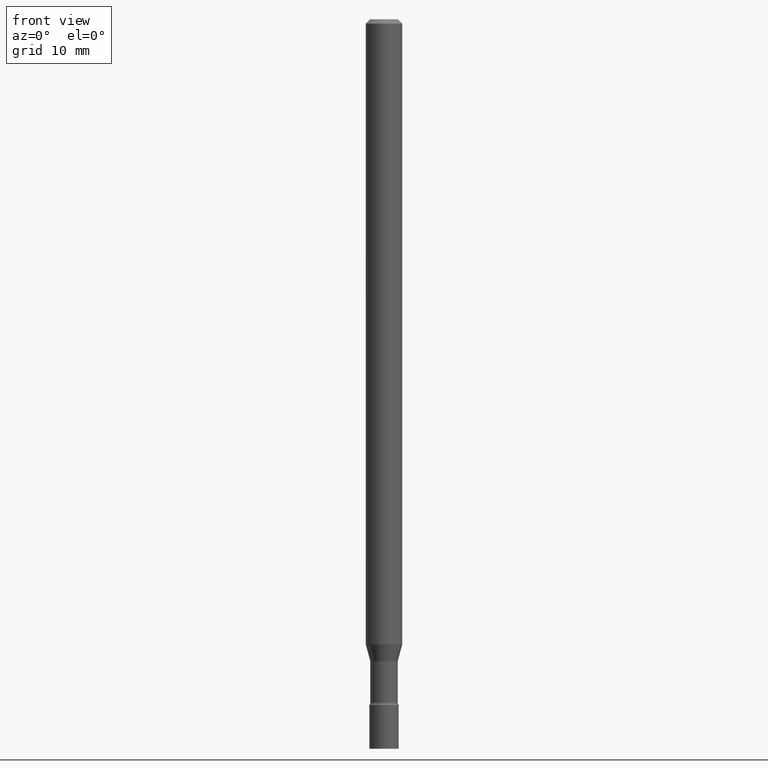
[diagram: clean part render]
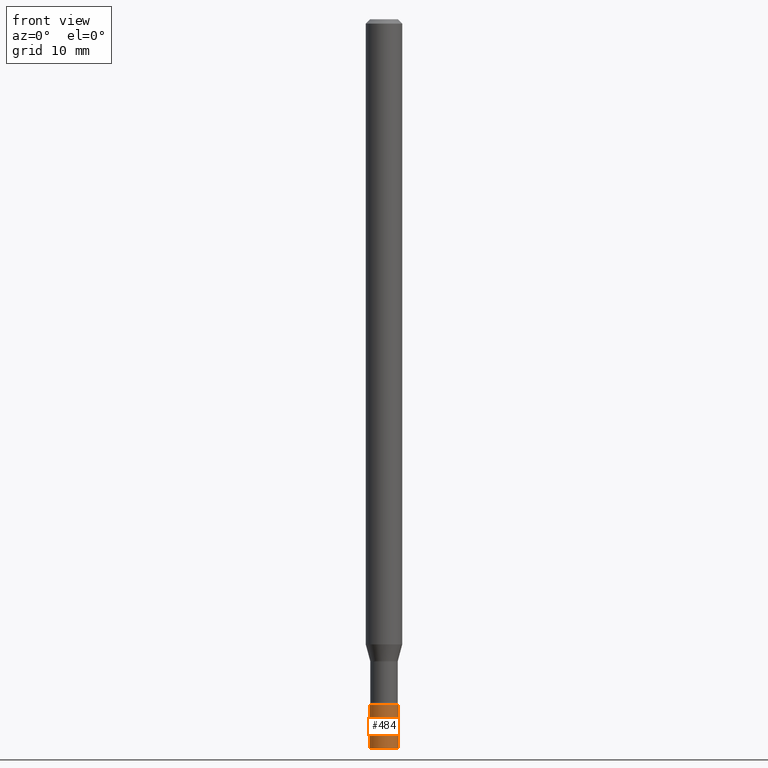
[diagram: same view with one face highlighted and labeled with its STEP entity id]
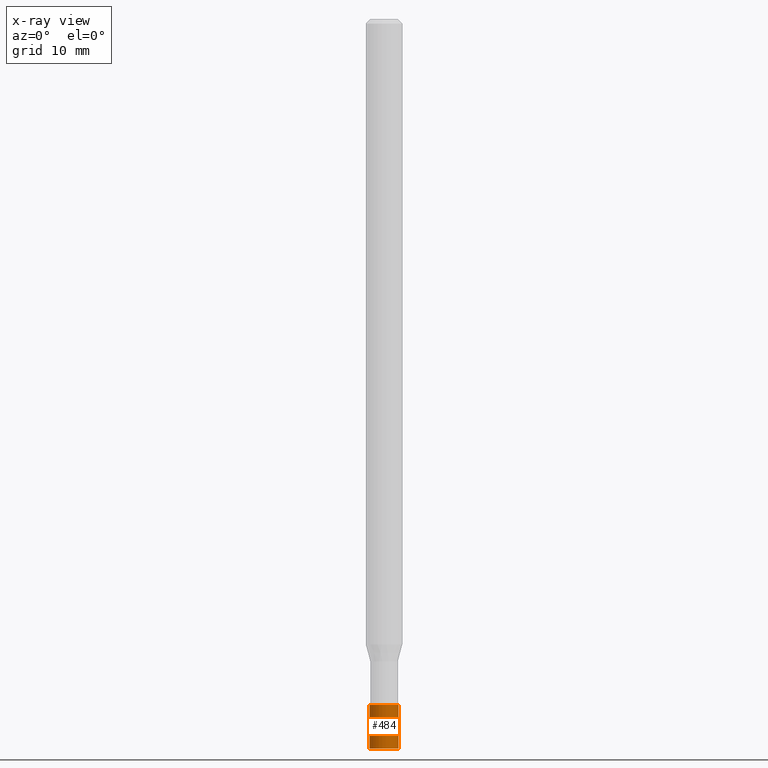
[diagram: x-ray of the same camera — body ghosted, the highlighted face saturated]
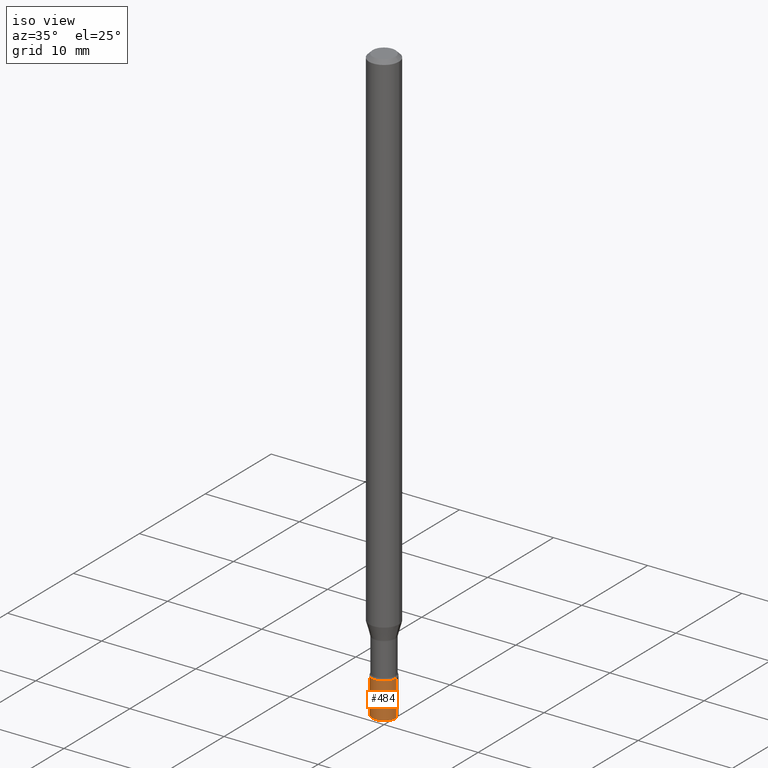
[diagram: same view with one face highlighted and labeled with its STEP entity id]
A machine part, front view. The second image highlights one B-rep face of the part: STEP entity #484.
The next image is the same camera in x-ray: the body ghosted, the highlighted face saturated — about 0% of this face is hidden behind the body in this view.
A second angle (iso view) of the same face is appended — the face is thin or edge-on in the first view.
In plain terms, the highlighted cylindrical surface (edge-blend (fillet) strip) has radius 1.27 mm, axis along (-0, 0, 1).
Its self-contained STEP definition (entity closure, byte-faithful):
#25 = CARTESIAN_POINT ( 'NONE',  ( 0.05000000000000000278, -8.554129280165705119E-15, -2.349999999999999645 ) ) ;
#28 = CIRCLE ( 'NONE', #411, 0.05000000000000000278 ) ;
#38 = DIRECTION ( 'NONE',  ( 1.000000000000000000, -6.982962677686267499E-15, 4.876176775795936353E-29 ) ) ;
#67 = EDGE_LOOP ( 'NONE', ( #414, #391, #249, #104 ) ) ;
#104 = ORIENTED_EDGE ( 'NONE', *, *, #372, .F. ) ;
#120 = CIRCLE ( 'NONE', #321, 0.05000000000000000278 ) ;
#148 = LINE ( 'NONE', #308, #446 ) ;
#170 = EDGE_CURVE ( 'NONE', #461, #203, #148, .T. ) ;
#191 = VERTEX_POINT ( 'NONE', #342 ) ;
#193 = VECTOR ( 'NONE', #480, 39.37007874015748143 ) ;
#201 = EDGE_CURVE ( 'NONE', #191, #307, #471, .T. ) ;
#202 = CARTESIAN_POINT ( 'NONE',  ( 0.05000000000000000278, -9.077851480992178278E-15, -2.500000000000000000 ) ) ;
#203 = VERTEX_POINT ( 'NONE', #25 ) ;
#249 = ORIENTED_EDGE ( 'NONE', *, *, #170, .T. ) ;
#251 = AXIS2_PLACEMENT_3D ( 'NONE', #327, #407, #38 ) ;
#283 = DIRECTION ( 'NONE',  ( 1.000000000000000000, -6.982962677686274599E-15, 0.000000000000000000 ) ) ;
#287 = CYLINDRICAL_SURFACE ( 'NONE', #251, 0.05000000000000000278 ) ;
#290 = CARTESIAN_POINT ( 'NONE',  ( 6.113672015462842613E-29, -8.728703347107864943E-15, -2.500000000000000000 ) ) ;
#307 = VERTEX_POINT ( 'NONE', #467 ) ;
#308 = CARTESIAN_POINT ( 'NONE',  ( 0.05000000000000000278, -3.491481338843133848E-16, 2.438088387897968247E-30 ) ) ;
#321 = AXIS2_PLACEMENT_3D ( 'NONE', #290, #367, #520 ) ;
#325 = CARTESIAN_POINT ( 'NONE',  ( 5.746851694535070554E-29, -8.204981146281391784E-15, -2.349999999999999645 ) ) ;
#327 = CARTESIAN_POINT ( 'NONE',  ( 0.000000000000000000, 0.000000000000000000, 0.000000000000000000 ) ) ;
#342 = CARTESIAN_POINT ( 'NONE',  ( -0.05000000000000000278, -8.111570878814577955E-15, -2.500000000000000000 ) ) ;
#367 = DIRECTION ( 'NONE',  ( -2.445468806185136597E-29, 3.491481338843145583E-15, 1.000000000000000000 ) ) ;
#369 = FACE_OUTER_BOUND ( 'NONE', #67, .T. ) ;
#372 = EDGE_CURVE ( 'NONE', #307, #203, #28, .T. ) ;
#379 = EDGE_CURVE ( 'NONE', #191, #461, #120, .T. ) ;
#391 = ORIENTED_EDGE ( 'NONE', *, *, #379, .T. ) ;
#394 = CARTESIAN_POINT ( 'NONE',  ( -0.05000000000000000278, 3.552713678800501127E-16, -2.459467545127453311E-30 ) ) ;
#407 = DIRECTION ( 'NONE',  ( -2.445468806185136597E-29, 3.491481338843145583E-15, 1.000000000000000000 ) ) ;
#408 = DIRECTION ( 'NONE',  ( -2.445468806185136597E-29, 3.491481338843145583E-15, 1.000000000000000000 ) ) ;
#411 = AXIS2_PLACEMENT_3D ( 'NONE', #325, #408, #283 ) ;
#414 = ORIENTED_EDGE ( 'NONE', *, *, #201, .F. ) ;
#426 = DIRECTION ( 'NONE',  ( -2.445468806185136877E-29, 3.491481338843145188E-15, 1.000000000000000000 ) ) ;
#446 = VECTOR ( 'NONE', #426, 39.37007874015748143 ) ;
#461 = VERTEX_POINT ( 'NONE', #202 ) ;
#467 = CARTESIAN_POINT ( 'NONE',  ( -0.05000000000000000278, -8.111570878814577955E-15, -2.349999999999999645 ) ) ;
#471 = LINE ( 'NONE', #394, #193 ) ;
#480 = DIRECTION ( 'NONE',  ( -2.445468806185136877E-29, 3.491481338843145188E-15, 1.000000000000000000 ) ) ;
#484 = ADVANCED_FACE ( 'NONE', ( #369 ), #287, .T. ) ;
#520 = DIRECTION ( 'NONE',  ( 1.000000000000000000, -6.982962677686274599E-15, 0.000000000000000000 ) ) ;